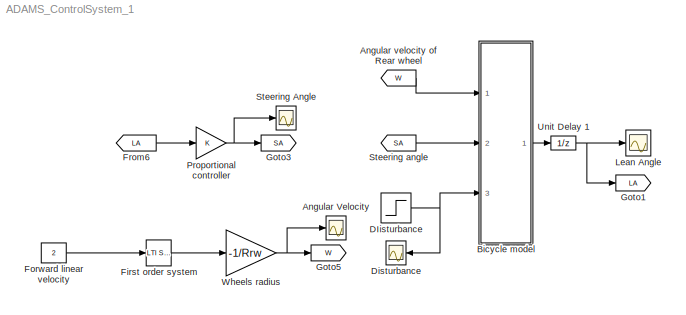
MODEL ADAMS_ControlSystem_1
KIND model
BLOCK [Scope] Angular Velocity
  DataFormat = StructureWithTime
  Floating = off
  NumInputPorts = 1
  Ports = [1]
  SID = 86
  SampleTime = 0
  SaveName = ScopeData3
  ShowLegends = off
BLOCK [From] Angular velocity of Rear wheel
  GotoTag = W
  SID = 42
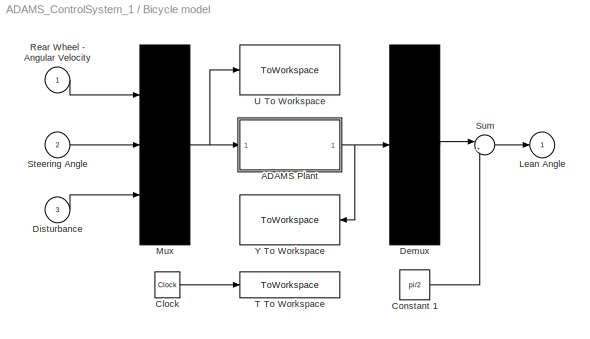
BLOCK [SubSystem] Bicycle model
  Ports = [3, 1]
  RequestExecContextInheritance = off
  SID = 99
  ShowPortLabels = none
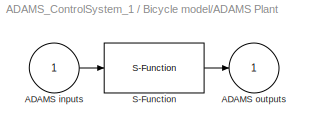
BLOCK [SubSystem] Bicycle model/ADAMS Plant
  InitFcn = clear mex
  LoadFcn = %check based on dialog box setting for when setting by popup menu                                             \nif exist('ADAMS_solver_type')                                                                                 \n  if strcmp(ADAMS_solver_type,'C++')                                                                          \n    set_param(gcb,'exetyp','C++');                              ...<+3523ch>
  OpenFcn = open_system(gcb,'mask')                                                                                                                          \nif not(exist('set_some_params_states'))                                                                                                          \n                                                                                                          ...<+634ch>
  Ports = [1, 1]
  RequestExecContextInheritance = off
  SID = 103
BLOCK [Inport] Bicycle model/ADAMS Plant/ADAMS inputs
  IconDisplay = Port number
  SID = 104
BLOCK [Outport] Bicycle model/ADAMS Plant/ADAMS outputs
  IconDisplay = Port number
  InitialOutput = 0
  SID = 106
BLOCK [S-Function] Bicycle model/ADAMS Plant/S-Function
  EnableBusSupport = off
  FunctionName = adams_plant
  Parameters = exevie,exesol,stat,outfil,nampre,o_rate,nam_in,namout,dft,modsim,modani,dt_out,inicmd,exetyp,comtyp,ada_host, workdir,pin_interp_order,pout_extrap_order,pin_extrap_order,pout_interp_order,simulink_lead_cosim
  Ports = [1, 1]
  SID = 105
  StopFcn = clear mex
BLOCK [Clock] Bicycle model/Clock
  SID = 107
BLOCK [Constant] Bicycle model/Constant 1
  SID = 115
  SampleTime = Ts
  Value = pi/2
BLOCK [Demux] Bicycle model/Demux
  Outputs = 1
  Ports = [1, 1]
  SID = 108
BLOCK [Inport] Bicycle model/Disturbance
  IconDisplay = Port number
  Port = 3
  SID = 102
BLOCK [Outport] Bicycle model/Lean Angle
  IconDisplay = Port number
  SID = 113
BLOCK [Mux] Bicycle model/Mux
  Inputs = 3
  Ports = [3, 1]
  SID = 109
BLOCK [Inport] Bicycle model/Rear Wheel - Angular Velocity
  IconDisplay = Port number
  SID = 100
BLOCK [Inport] Bicycle model/Steering Angle
  IconDisplay = Port number
  Port = 2
  SID = 101
BLOCK [Sum] Bicycle model/Sum
  IconShape = round
  InputSameDT = off
  Inputs = |++
  OutDataTypeStr = Inherit: Inherit via internal rule
  Ports = [2, 1]
  SID = 114
  SaturateOnIntegerOverflow = off
BLOCK [ToWorkspace] Bicycle model/T To Workspace
  MaxDataPoints = 100000
  Ports = [1]
  SID = 110
  VariableName = ADAMS_tout
BLOCK [ToWorkspace] Bicycle model/U To Workspace
  MaxDataPoints = 100000
  Ports = [1]
  SID = 111
  VariableName = ADAMS_uout
BLOCK [ToWorkspace] Bicycle model/Y To Workspace
  MaxDataPoints = 100000
  Ports = [1]
  SID = 112
  VariableName = ADAMS_yout
BLOCK [Step] DIisturbance
  After = 5
  SID = 98
  SampleTime = Ts
  Time = 10
BLOCK [Scope] Disturbance
  DataFormat = StructureWithTime
  Floating = off
  NumInputPorts = 1
  Ports = [1]
  SID = 117
  SampleTime = 0
  SaveName = ScopeData2
  ShowLegends = off
  YMax = 8
  YMin = -3
BLOCK [Reference] First order system  REF=cstblocks/LTI System
  IC = []
  Ports = [1, 1]
  SID = 91
  SourceBlock = cstblocks/LTI System
  SourceType = LTI Block
  sys = Fz
BLOCK [Constant] Forward linear velocity
  SID = 73
  Value = 2
BLOCK [From] From6
  GotoTag = LA
  SID = 87
BLOCK [Goto] Goto1
  GotoTag = LA
  SID = 40
BLOCK [Goto] Goto3
  GotoTag = SA
  SID = 89
BLOCK [Goto] Goto5
  GotoTag = W
  SID = 85
BLOCK [Scope] Lean Angle
  Floating = off
  LimitDataPoints = off
  NumInputPorts = 1
  Ports = [1]
  SID = 1
  ShowLegends = off
BLOCK [Gain] Proportional controller
  Gain = K
  OutDataTypeStr = Inherit: Inherit via internal rule
  ParamDataTypeStr = Inherit: Inherit via internal rule
  SID = 88
  SaturateOnIntegerOverflow = off
BLOCK [Scope] Steering Angle
  DataFormat = StructureWithTime
  Floating = off
  NumInputPorts = 1
  Ports = [1]
  SID = 90
  SampleTime = 0
  SaveName = ScopeData1
  ShowLegends = off
BLOCK [From] Steering angle
  GotoTag = SA
  SID = 41
BLOCK [UnitDelay] Unit Delay 1
  InputProcessing = Elements as channels (sample based)
  SID = 116
  SampleTime = Ts
BLOCK [Gain] Wheels radius
  Gain = -1/Rrw
  OutDataTypeStr = Inherit: Inherit via internal rule
  ParamDataTypeStr = Inherit: Inherit via internal rule
  SID = 84
  SaturateOnIntegerOverflow = off
LINE Angular velocity of Rear wheel:1 -> Bicycle model:1
LINE Bicycle model/ADAMS Plant/ADAMS inputs:1 -> Bicycle model/ADAMS Plant/S-Function:1
LINE Bicycle model/ADAMS Plant/S-Function:1 -> Bicycle model/ADAMS Plant/ADAMS outputs:1
NET Bicycle model/ADAMS Plant:1 -> Bicycle model/Demux:1, Bicycle model/Y To Workspace:1
LINE Bicycle model/Clock:1 -> Bicycle model/T To Workspace:1
LINE Bicycle model/Constant 1:1 -> Bicycle model/Sum:2
LINE Bicycle model/Demux:1 -> Bicycle model/Sum:1
LINE Bicycle model/Disturbance:1 -> Bicycle model/Mux:3
NET Bicycle model/Mux:1 -> Bicycle model/ADAMS Plant:1, Bicycle model/U To Workspace:1
LINE Bicycle model/Rear Wheel - Angular Velocity:1 -> Bicycle model/Mux:1
LINE Bicycle model/Steering Angle:1 -> Bicycle model/Mux:2
LINE Bicycle model/Sum:1 -> Bicycle model/Lean Angle:1
LINE Bicycle model:1 -> Unit Delay 1:1
NET DIisturbance:1 -> Bicycle model:3, Disturbance:1
LINE First order system:1 -> Wheels radius:1
LINE Forward linear velocity:1 -> First order system:1
LINE From6:1 -> Proportional controller:1
NET Proportional controller:1 -> Goto3:1, Steering Angle:1
LINE Steering angle:1 -> Bicycle model:2
NET Unit Delay 1:1 -> Goto1:1, Lean Angle:1
NET Wheels radius:1 -> Angular Velocity:1, Goto5:1
note: NET lines group one-source signal fan-out (src -> all destinations, sorted); 1:1 wires keep LINE
